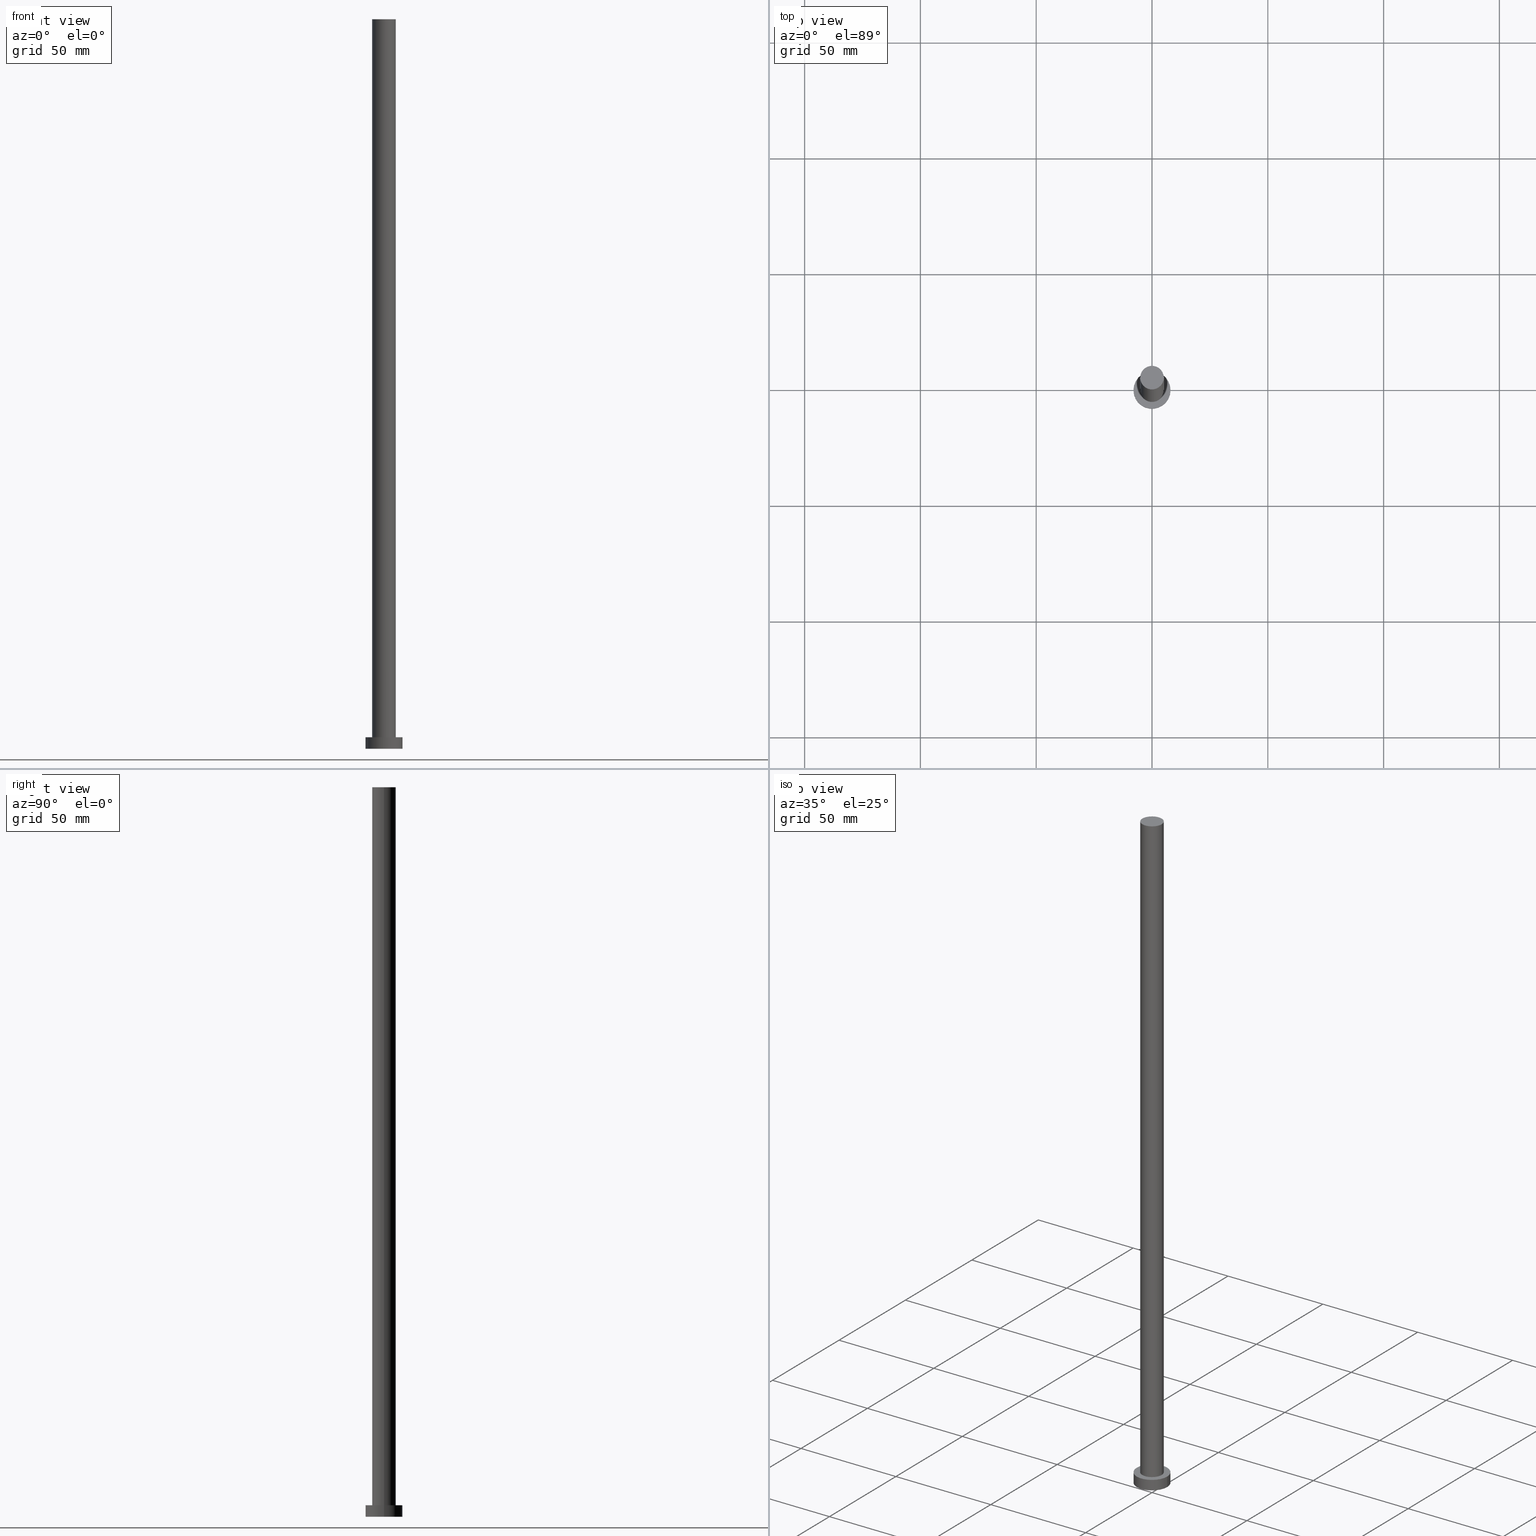
[diagram: canonical four-view strip — front | top / right | iso, engineering-drawing reading convention]
A machine part, canonical four-view strip (front | top / right | iso — engineering-drawing reading convention). The complete STEP part file that produces these views, byte-faithful:
ISO-10303-21;
HEADER;
FILE_DESCRIPTION (( 'STEP AP203' ),
    '1' );
FILE_NAME ('8510.STEP',
    '2023-02-13T13:15:13',
    ( '' ),
    ( '' ),
    'SwSTEP 2.0',
    'SolidWorks 2019',
    '' );
FILE_SCHEMA (( 'CONFIG_CONTROL_DESIGN' ));
ENDSEC;

DATA;
#1 = VERTEX_POINT ( 'NONE', #121 ) ;
#2 = CYLINDRICAL_SURFACE ( 'NONE', #21, 8.000000000000000000 ) ;
#3 = LINE ( 'NONE', #246, #58 ) ;
#4 = CARTESIAN_POINT ( 'NONE',  ( 0.000000000000000000, 0.000000000000000000, 5.000000000000000000 ) ) ;
#5 = DIRECTION ( 'NONE',  ( 1.000000000000000000, 0.000000000000000000, 0.000000000000000000 ) ) ;
#6 = ORIENTED_EDGE ( 'NONE', *, *, #140, .F. ) ;
#7 = LOCAL_TIME ( 14, 15, 13.00000000000000000, #54 ) ;
#8 = CC_DESIGN_PERSON_AND_ORGANIZATION_ASSIGNMENT ( #56, #240, ( #98 ) ) ;
#9 = DIRECTION ( 'NONE',  ( -1.000000000000000000, 0.000000000000000000, 0.000000000000000000 ) ) ;
#10 = DIRECTION ( 'NONE',  ( 1.000000000000000000, 0.000000000000000000, -0.000000000000000000 ) ) ;
#11 = FACE_BOUND ( 'NONE', #75, .T. ) ;
#12 = DIRECTION ( 'NONE',  ( 0.000000000000000000, 0.000000000000000000, 1.000000000000000000 ) ) ;
#13 = APPROVAL_ROLE ( '' ) ;
#14 = CC_DESIGN_APPROVAL ( #238, ( #149 ) ) ;
#15 = DATE_AND_TIME ( #175, #173 ) ;
#16 = PERSON_AND_ORGANIZATION ( #171, #81 ) ;
#17 = VERTEX_POINT ( 'NONE', #64 ) ;
#18 = CC_DESIGN_PERSON_AND_ORGANIZATION_ASSIGNMENT ( #169, #248, ( #40 ) ) ;
#19 = DIRECTION ( 'NONE',  ( 1.000000000000000000, 0.000000000000000000, 0.000000000000000000 ) ) ;
#20 = ORIENTED_EDGE ( 'NONE', *, *, #96, .F. ) ;
#21 = AXIS2_PLACEMENT_3D ( 'NONE', #67, #219, #41 ) ;
#22 = DIRECTION ( 'NONE',  ( 0.000000000000000000, 0.000000000000000000, 1.000000000000000000 ) ) ;
#23 = CARTESIAN_POINT ( 'NONE',  ( 0.000000000000000000, 0.000000000000000000, 5.000000000000000000 ) ) ;
#24 = ORIENTED_EDGE ( 'NONE', *, *, #30, .T. ) ;
#25 = APPLICATION_PROTOCOL_DEFINITION ( 'international standard', 'config_control_design', 1994, #170 ) ;
#26 = CARTESIAN_POINT ( 'NONE',  ( -8.000000000000000000, 0.000000000000000000, 5.000000000000000000 ) ) ;
#27 = DIRECTION ( 'NONE',  ( 1.000000000000000000, 0.000000000000000000, 0.000000000000000000 ) ) ;
#28 = APPROVAL ( #132, 'NEUR�EN�' ) ;
#29 = FACE_OUTER_BOUND ( 'NONE', #36, .T. ) ;
#30 = EDGE_CURVE ( 'NONE', #135, #78, #3, .T. ) ;
#31 = CALENDAR_DATE ( 2023, 13, 2 ) ;
#32 = VERTEX_POINT ( 'NONE', #102 ) ;
#33 = AXIS2_PLACEMENT_3D ( 'NONE', #23, #143, #5 ) ;
#34 = EDGE_CURVE ( 'NONE', #1, #136, #184, .T. ) ;
#35 = DATE_TIME_ROLE ( 'creation_date' ) ;
#36 = EDGE_LOOP ( 'NONE', ( #237, #251 ) ) ;
#37 = ORIENTED_EDGE ( 'NONE', *, *, #140, .T. ) ;
#38 = CIRCLE ( 'NONE', #33, 8.000000000000000000 ) ;
#39 = CARTESIAN_POINT ( 'NONE',  ( -8.000000000000000000, 0.000000000000000000, 5.000000000000000000 ) ) ;
#40 = PRODUCT_DEFINITION ( 'NEZN�M�', '', #98, #44 ) ;
#41 = DIRECTION ( 'NONE',  ( -1.000000000000000000, 0.000000000000000000, 0.000000000000000000 ) ) ;
#42 = CIRCLE ( 'NONE', #61, 5.099999999999999645 ) ;
#43 = DIRECTION ( 'NONE',  ( 0.000000000000000000, 0.000000000000000000, 1.000000000000000000 ) ) ;
#44 = DESIGN_CONTEXT ( 'detailed design', #183, 'design' ) ;
#45 = DIRECTION ( 'NONE',  ( -1.000000000000000000, 0.000000000000000000, 0.000000000000000000 ) ) ;
#46 = EDGE_CURVE ( 'NONE', #17, #115, #160, .T. ) ;
#47 = LINE ( 'NONE', #39, #229 ) ;
#48 = DIRECTION ( 'NONE',  ( 0.000000000000000000, 0.000000000000000000, 1.000000000000000000 ) ) ;
#49 = AXIS2_PLACEMENT_3D ( 'NONE', #172, #148, #71 ) ;
#50 = PERSON_AND_ORGANIZATION ( #171, #81 ) ;
#51 = APPROVAL_STATUS ( 'not_yet_approved' ) ;
#52 = AXIS2_PLACEMENT_3D ( 'NONE', #190, #48, #203 ) ;
#53 = APPROVAL_DATE_TIME ( #233, #205 ) ;
#54 = COORDINATED_UNIVERSAL_TIME_OFFSET ( 1, 0, .AHEAD. ) ;
#55 = ORIENTED_EDGE ( 'NONE', *, *, #255, .T. ) ;
#56 = PERSON_AND_ORGANIZATION ( #171, #81 ) ;
#57 = ORIENTED_EDGE ( 'NONE', *, *, #131, .F. ) ;
#58 = VECTOR ( 'NONE', #105, 1000.000000000000000 ) ;
#59 = CC_DESIGN_PERSON_AND_ORGANIZATION_ASSIGNMENT ( #236, #154, ( #149 ) ) ;
#60 = EDGE_LOOP ( 'NONE', ( #156, #24, #153, #134 ) ) ;
#61 = AXIS2_PLACEMENT_3D ( 'NONE', #249, #69, #108 ) ;
#62 = CARTESIAN_POINT ( 'NONE',  ( 5.099999999999999645, 6.245698675651500839E-16, 315.0000000000000000 ) ) ;
#63 = CIRCLE ( 'NONE', #204, 5.099999999999999645 ) ;
#64 = CARTESIAN_POINT ( 'NONE',  ( 8.000000000000000000, 9.797174393178825657E-16, 0.000000000000000000 ) ) ;
#65 = DIRECTION ( 'NONE',  ( -0.000000000000000000, -0.000000000000000000, -1.000000000000000000 ) ) ;
#66 =( GEOMETRIC_REPRESENTATION_CONTEXT ( 3 ) GLOBAL_UNCERTAINTY_ASSIGNED_CONTEXT ( ( #220 ) ) GLOBAL_UNIT_ASSIGNED_CONTEXT ( ( #93, #127, #225 ) ) REPRESENTATION_CONTEXT ( 'NONE', 'WORKASPACE' ) );
#67 = CARTESIAN_POINT ( 'NONE',  ( 0.000000000000000000, 0.000000000000000000, 5.000000000000000000 ) ) ;
#68 = DIRECTION ( 'NONE',  ( 1.000000000000000000, 0.000000000000000000, 0.000000000000000000 ) ) ;
#69 = DIRECTION ( 'NONE',  ( 0.000000000000000000, 0.000000000000000000, 1.000000000000000000 ) ) ;
#70 = APPLICATION_PROTOCOL_DEFINITION ( 'international standard', 'config_control_design', 1994, #183 ) ;
#71 = DIRECTION ( 'NONE',  ( 1.000000000000000000, 0.000000000000000000, 0.000000000000000000 ) ) ;
#72 = CIRCLE ( 'NONE', #111, 5.099999999999999645 ) ;
#73 = EDGE_LOOP ( 'NONE', ( #218, #212 ) ) ;
#74 = DATE_AND_TIME ( #210, #122 ) ;
#75 = EDGE_LOOP ( 'NONE', ( #6, #112 ) ) ;
#76 = ADVANCED_BREP_SHAPE_REPRESENTATION ( '8510', ( #217, #52 ), #66 ) ;
#77 = COORDINATED_UNIVERSAL_TIME_OFFSET ( 1, 0, .AHEAD. ) ;
#78 = VERTEX_POINT ( 'NONE', #244 ) ;
#79 = ADVANCED_FACE ( 'NONE', ( #85 ), #2, .T. ) ;
#80 = CARTESIAN_POINT ( 'NONE',  ( 0.000000000000000000, 0.000000000000000000, 315.0000000000000000 ) ) ;
#81 = ORGANIZATION ( 'NEUR�EN�', 'NEUR�EN�', '' ) ;
#82 = FACE_OUTER_BOUND ( 'NONE', #152, .T. ) ;
#83 = AXIS2_PLACEMENT_3D ( 'NONE', #198, #245, #45 ) ;
#84 = CARTESIAN_POINT ( 'NONE',  ( 0.000000000000000000, 0.000000000000000000, 0.000000000000000000 ) ) ;
#85 = FACE_OUTER_BOUND ( 'NONE', #201, .T. ) ;
#86 = AXIS2_PLACEMENT_3D ( 'NONE', #209, #88, #9 ) ;
#87 = CARTESIAN_POINT ( 'NONE',  ( -5.099999999999999645, 0.000000000000000000, 315.0000000000000000 ) ) ;
#88 = DIRECTION ( 'NONE',  ( -0.000000000000000000, -0.000000000000000000, -1.000000000000000000 ) ) ;
#89 = EDGE_CURVE ( 'NONE', #135, #1, #234, .T. ) ;
#90 = APPROVAL_PERSON_ORGANIZATION ( #50, #205, #125 ) ;
#91 = FACE_OUTER_BOUND ( 'NONE', #165, .T. ) ;
#92 = ADVANCED_FACE ( 'NONE', ( #139 ), #199, .T. ) ;
#93 =( LENGTH_UNIT ( ) NAMED_UNIT ( * ) SI_UNIT ( .MILLI., .METRE. ) );
#94 = SHAPE_DEFINITION_REPRESENTATION ( #226, #76 ) ;
#95 = CIRCLE ( 'NONE', #49, 8.000000000000000000 ) ;
#96 = EDGE_CURVE ( 'NONE', #32, #214, #38, .T. ) ;
#97 = COORDINATED_UNIVERSAL_TIME_OFFSET ( 1, 0, .AHEAD. ) ;
#98 = PRODUCT_DEFINITION_FORMATION_WITH_SPECIFIED_SOURCE ( 'LIBOVOLN�', '', #119, .NOT_KNOWN. ) ;
#99 = ORIENTED_EDGE ( 'NONE', *, *, #155, .F. ) ;
#100 = DIRECTION ( 'NONE',  ( -0.000000000000000000, -0.000000000000000000, -1.000000000000000000 ) ) ;
#101 = CYLINDRICAL_SURFACE ( 'NONE', #83, 5.099999999999999645 ) ;
#102 = CARTESIAN_POINT ( 'NONE',  ( 8.000000000000000000, 9.797174393178825657E-16, 5.000000000000000000 ) ) ;
#103 = FACE_OUTER_BOUND ( 'NONE', #60, .T. ) ;
#104 = EDGE_CURVE ( 'NONE', #32, #17, #221, .T. ) ;
#105 = DIRECTION ( 'NONE',  ( -0.000000000000000000, -0.000000000000000000, -1.000000000000000000 ) ) ;
#106 = CALENDAR_DATE ( 2023, 13, 2 ) ;
#107 = DIRECTION ( 'NONE',  ( -0.000000000000000000, -0.000000000000000000, -1.000000000000000000 ) ) ;
#108 = DIRECTION ( 'NONE',  ( 1.000000000000000000, 0.000000000000000000, 0.000000000000000000 ) ) ;
#109 = SECURITY_CLASSIFICATION_LEVEL ( 'unclassified' ) ;
#110 = AXIS2_PLACEMENT_3D ( 'NONE', #206, #191, #27 ) ;
#111 = AXIS2_PLACEMENT_3D ( 'NONE', #142, #43, #19 ) ;
#112 = ORIENTED_EDGE ( 'NONE', *, *, #185, .F. ) ;
#113 = CC_DESIGN_APPROVAL ( #205, ( #40 ) ) ;
#114 = ORIENTED_EDGE ( 'NONE', *, *, #104, .T. ) ;
#115 = VERTEX_POINT ( 'NONE', #224 ) ;
#116 = DIRECTION ( 'NONE',  ( 0.000000000000000000, 0.000000000000000000, 1.000000000000000000 ) ) ;
#117 = ADVANCED_FACE ( 'NONE', ( #103 ), #101, .T. ) ;
#118 = ORIENTED_EDGE ( 'NONE', *, *, #30, .F. ) ;
#119 = PRODUCT ( '8510', '8510', '', ( #231 ) ) ;
#120 = CARTESIAN_POINT ( 'NONE',  ( -5.099999999999999645, 0.000000000000000000, 5.000000000000000000 ) ) ;
#121 = CARTESIAN_POINT ( 'NONE',  ( -5.099999999999999645, 0.000000000000000000, 315.0000000000000000 ) ) ;
#122 = LOCAL_TIME ( 14, 15, 13.00000000000000000, #77 ) ;
#123 = PLANE ( 'NONE',  #215 ) ;
#124 = COORDINATED_UNIVERSAL_TIME_OFFSET ( 1, 0, .AHEAD. ) ;
#125 = APPROVAL_ROLE ( '' ) ;
#126 = AXIS2_PLACEMENT_3D ( 'NONE', #228, #12, #10 ) ;
#127 =( NAMED_UNIT ( * ) PLANE_ANGLE_UNIT ( ) SI_UNIT ( $, .RADIAN. ) );
#128 = CC_DESIGN_DATE_AND_TIME_ASSIGNMENT ( #15, #35, ( #40 ) ) ;
#129 = VECTOR ( 'NONE', #247, 1000.000000000000000 ) ;
#130 = FACE_OUTER_BOUND ( 'NONE', #164, .T. ) ;
#131 = EDGE_CURVE ( 'NONE', #1, #135, #72, .T. ) ;
#132 = APPROVAL_STATUS ( 'not_yet_approved' ) ;
#133 = DATE_AND_TIME ( #31, #252 ) ;
#134 = ORIENTED_EDGE ( 'NONE', *, *, #34, .F. ) ;
#135 = VERTEX_POINT ( 'NONE', #62 ) ;
#136 = VERTEX_POINT ( 'NONE', #120 ) ;
#137 = ORIENTED_EDGE ( 'NONE', *, *, #211, .T. ) ;
#138 = AXIS2_PLACEMENT_3D ( 'NONE', #4, #107, #230 ) ;
#139 = FACE_OUTER_BOUND ( 'NONE', #73, .T. ) ;
#140 = EDGE_CURVE ( 'NONE', #136, #78, #63, .T. ) ;
#141 = DIRECTION ( 'NONE',  ( 1.000000000000000000, 0.000000000000000000, 0.000000000000000000 ) ) ;
#142 = CARTESIAN_POINT ( 'NONE',  ( 0.000000000000000000, 0.000000000000000000, 315.0000000000000000 ) ) ;
#143 = DIRECTION ( 'NONE',  ( 0.000000000000000000, 0.000000000000000000, 1.000000000000000000 ) ) ;
#144 = DIRECTION ( 'NONE',  ( 1.000000000000000000, 0.000000000000000000, -0.000000000000000000 ) ) ;
#145 = CYLINDRICAL_SURFACE ( 'NONE', #86, 5.099999999999999645 ) ;
#146 = APPROVAL_PERSON_ORGANIZATION ( #174, #238, #13 ) ;
#147 = PERSON_AND_ORGANIZATION ( #171, #81 ) ;
#148 = DIRECTION ( 'NONE',  ( 0.000000000000000000, 0.000000000000000000, 1.000000000000000000 ) ) ;
#149 = SECURITY_CLASSIFICATION ( '', '', #109 ) ;
#150 = AXIS2_PLACEMENT_3D ( 'NONE', #181, #116, #68 ) ;
#151 = COORDINATED_UNIVERSAL_TIME_OFFSET ( 1, 0, .AHEAD. ) ;
#152 = EDGE_LOOP ( 'NONE', ( #20, #114, #196, #99 ) ) ;
#153 = ORIENTED_EDGE ( 'NONE', *, *, #185, .T. ) ;
#154 = PERSON_AND_ORGANIZATION_ROLE ( 'classification_officer' ) ;
#155 = EDGE_CURVE ( 'NONE', #214, #115, #47, .T. ) ;
#156 = ORIENTED_EDGE ( 'NONE', *, *, #89, .F. ) ;
#157 = PERSON_AND_ORGANIZATION ( #171, #81 ) ;
#158 = ORIENTED_EDGE ( 'NONE', *, *, #34, .T. ) ;
#159 = CC_DESIGN_APPROVAL ( #28, ( #98 ) ) ;
#160 = CIRCLE ( 'NONE', #162, 8.000000000000000000 ) ;
#161 = CYLINDRICAL_SURFACE ( 'NONE', #138, 8.000000000000000000 ) ;
#162 = AXIS2_PLACEMENT_3D ( 'NONE', #84, #186, #141 ) ;
#163 = DIRECTION ( 'NONE',  ( 0.000000000000000000, 0.000000000000000000, 1.000000000000000000 ) ) ;
#164 = EDGE_LOOP ( 'NONE', ( #55, #243 ) ) ;
#165 = EDGE_LOOP ( 'NONE', ( #118, #57, #158, #37 ) ) ;
#166 = ADVANCED_FACE ( 'NONE', ( #82 ), #161, .T. ) ;
#167 = PLANE ( 'NONE',  #126 ) ;
#168 = CARTESIAN_POINT ( 'NONE',  ( 0.000000000000000000, 0.000000000000000000, 0.000000000000000000 ) ) ;
#169 = PERSON_AND_ORGANIZATION ( #171, #81 ) ;
#170 = APPLICATION_CONTEXT ( 'configuration controlled 3d designs of mechanical parts and assemblies' ) ;
#171 = PERSON ( 'NEUR�EN�', 'NEUR�EN�', 'NEUR�EN�', ('NEUR�EN�'), ('NEUR�EN�'), ('NEUR�EN�') ) ;
#172 = CARTESIAN_POINT ( 'NONE',  ( 0.000000000000000000, 0.000000000000000000, 5.000000000000000000 ) ) ;
#173 = LOCAL_TIME ( 14, 15, 13.00000000000000000, #151 ) ;
#174 = PERSON_AND_ORGANIZATION ( #171, #81 ) ;
#175 = CALENDAR_DATE ( 2023, 13, 2 ) ;
#176 = ORIENTED_EDGE ( 'NONE', *, *, #155, .T. ) ;
#177 = ADVANCED_FACE ( 'NONE', ( #11, #130 ), #167, .T. ) ;
#178 = APPROVAL_DATE_TIME ( #74, #28 ) ;
#179 = ORIENTED_EDGE ( 'NONE', *, *, #255, .F. ) ;
#180 = ADVANCED_FACE ( 'NONE', ( #91 ), #145, .T. ) ;
#181 = CARTESIAN_POINT ( 'NONE',  ( 0.000000000000000000, 0.000000000000000000, 315.0000000000000000 ) ) ;
#182 = DIRECTION ( 'NONE',  ( 1.000000000000000000, 0.000000000000000000, 0.000000000000000000 ) ) ;
#183 = APPLICATION_CONTEXT ( 'configuration controlled 3d designs of mechanical parts and assemblies' ) ;
#184 = LINE ( 'NONE', #87, #129 ) ;
#185 = EDGE_CURVE ( 'NONE', #78, #136, #42, .T. ) ;
#186 = DIRECTION ( 'NONE',  ( 0.000000000000000000, 0.000000000000000000, 1.000000000000000000 ) ) ;
#187 = LOCAL_TIME ( 14, 15, 13.00000000000000000, #124 ) ;
#188 = AXIS2_PLACEMENT_3D ( 'NONE', #80, #163, #144 ) ;
#189 = DIRECTION ( 'NONE',  ( 0.000000000000000000, 0.000000000000000000, 1.000000000000000000 ) ) ;
#190 = CARTESIAN_POINT ( 'NONE',  ( 0.000000000000000000, 0.000000000000000000, 0.000000000000000000 ) ) ;
#191 = DIRECTION ( 'NONE',  ( 0.000000000000000000, 0.000000000000000000, 1.000000000000000000 ) ) ;
#192 = CALENDAR_DATE ( 2023, 13, 2 ) ;
#193 = CC_DESIGN_PERSON_AND_ORGANIZATION_ASSIGNMENT ( #157, #235, ( #98 ) ) ;
#194 = APPROVAL_ROLE ( '' ) ;
#195 = PRODUCT_RELATED_PRODUCT_CATEGORY ( 'detail', '', ( #119 ) ) ;
#196 = ORIENTED_EDGE ( 'NONE', *, *, #46, .T. ) ;
#197 = CC_DESIGN_DATE_AND_TIME_ASSIGNMENT ( #241, #239, ( #149 ) ) ;
#198 = CARTESIAN_POINT ( 'NONE',  ( 0.000000000000000000, 0.000000000000000000, 315.0000000000000000 ) ) ;
#199 = PLANE ( 'NONE',  #188 ) ;
#200 = CARTESIAN_POINT ( 'NONE',  ( 0.000000000000000000, 0.000000000000000000, 5.000000000000000000 ) ) ;
#201 = EDGE_LOOP ( 'NONE', ( #216, #179, #176, #137 ) ) ;
#202 = CC_DESIGN_PERSON_AND_ORGANIZATION_ASSIGNMENT ( #147, #207, ( #119 ) ) ;
#203 = DIRECTION ( 'NONE',  ( 1.000000000000000000, 0.000000000000000000, 0.000000000000000000 ) ) ;
#204 = AXIS2_PLACEMENT_3D ( 'NONE', #200, #22, #182 ) ;
#205 = APPROVAL ( #51, 'NEUR�EN�' ) ;
#206 = CARTESIAN_POINT ( 'NONE',  ( 0.000000000000000000, 0.000000000000000000, 0.000000000000000000 ) ) ;
#207 = PERSON_AND_ORGANIZATION_ROLE ( 'design_owner' ) ;
#208 = CLOSED_SHELL ( 'NONE', ( #117, #166, #79, #177, #232, #180, #92 ) ) ;
#209 = CARTESIAN_POINT ( 'NONE',  ( 0.000000000000000000, 0.000000000000000000, 315.0000000000000000 ) ) ;
#210 = CALENDAR_DATE ( 2023, 13, 2 ) ;
#211 = EDGE_CURVE ( 'NONE', #115, #17, #222, .T. ) ;
#212 = ORIENTED_EDGE ( 'NONE', *, *, #89, .T. ) ;
#213 = VECTOR ( 'NONE', #65, 1000.000000000000000 ) ;
#214 = VERTEX_POINT ( 'NONE', #26 ) ;
#215 = AXIS2_PLACEMENT_3D ( 'NONE', #168, #189, #250 ) ;
#216 = ORIENTED_EDGE ( 'NONE', *, *, #104, .F. ) ;
#217 = MANIFOLD_SOLID_BREP ( 'P�idat vysunut�m3', #208 ) ;
#218 = ORIENTED_EDGE ( 'NONE', *, *, #131, .T. ) ;
#219 = DIRECTION ( 'NONE',  ( -0.000000000000000000, -0.000000000000000000, -1.000000000000000000 ) ) ;
#220 = UNCERTAINTY_MEASURE_WITH_UNIT (LENGTH_MEASURE( 1.000000000000000082E-05 ), #93, 'distance_accuracy_value', 'NONE');
#221 = LINE ( 'NONE', #223, #213 ) ;
#222 = CIRCLE ( 'NONE', #110, 8.000000000000000000 ) ;
#223 = CARTESIAN_POINT ( 'NONE',  ( 8.000000000000000000, 9.797174393178825657E-16, 5.000000000000000000 ) ) ;
#224 = CARTESIAN_POINT ( 'NONE',  ( -8.000000000000000000, 0.000000000000000000, 0.000000000000000000 ) ) ;
#225 =( NAMED_UNIT ( * ) SI_UNIT ( $, .STERADIAN. ) SOLID_ANGLE_UNIT ( ) );
#226 = PRODUCT_DEFINITION_SHAPE ( 'NONE', 'NONE',  #40 ) ;
#227 = CC_DESIGN_SECURITY_CLASSIFICATION ( #149, ( #98 ) ) ;
#228 = CARTESIAN_POINT ( 'NONE',  ( 0.000000000000000000, 0.000000000000000000, 5.000000000000000000 ) ) ;
#229 = VECTOR ( 'NONE', #100, 1000.000000000000000 ) ;
#230 = DIRECTION ( 'NONE',  ( -1.000000000000000000, 0.000000000000000000, 0.000000000000000000 ) ) ;
#231 = MECHANICAL_CONTEXT ( 'NONE', #170, 'mechanical' ) ;
#232 = ADVANCED_FACE ( 'NONE', ( #29 ), #123, .F. ) ;
#233 = DATE_AND_TIME ( #106, #187 ) ;
#234 = CIRCLE ( 'NONE', #150, 5.099999999999999645 ) ;
#235 = PERSON_AND_ORGANIZATION_ROLE ( 'creator' ) ;
#236 = PERSON_AND_ORGANIZATION ( #171, #81 ) ;
#237 = ORIENTED_EDGE ( 'NONE', *, *, #211, .F. ) ;
#238 = APPROVAL ( #253, 'NEUR�EN�' ) ;
#239 = DATE_TIME_ROLE ( 'classification_date' ) ;
#240 = PERSON_AND_ORGANIZATION_ROLE ( 'design_supplier' ) ;
#241 = DATE_AND_TIME ( #192, #7 ) ;
#242 = APPROVAL_PERSON_ORGANIZATION ( #16, #28, #194 ) ;
#243 = ORIENTED_EDGE ( 'NONE', *, *, #96, .T. ) ;
#244 = CARTESIAN_POINT ( 'NONE',  ( 5.099999999999999645, 6.245698675651500839E-16, 5.000000000000000000 ) ) ;
#245 = DIRECTION ( 'NONE',  ( -0.000000000000000000, -0.000000000000000000, -1.000000000000000000 ) ) ;
#246 = CARTESIAN_POINT ( 'NONE',  ( 5.099999999999999645, 6.245698675651500839E-16, 315.0000000000000000 ) ) ;
#247 = DIRECTION ( 'NONE',  ( -0.000000000000000000, -0.000000000000000000, -1.000000000000000000 ) ) ;
#248 = PERSON_AND_ORGANIZATION_ROLE ( 'creator' ) ;
#249 = CARTESIAN_POINT ( 'NONE',  ( 0.000000000000000000, 0.000000000000000000, 5.000000000000000000 ) ) ;
#250 = DIRECTION ( 'NONE',  ( 1.000000000000000000, 0.000000000000000000, -0.000000000000000000 ) ) ;
#251 = ORIENTED_EDGE ( 'NONE', *, *, #46, .F. ) ;
#252 = LOCAL_TIME ( 14, 15, 13.00000000000000000, #97 ) ;
#253 = APPROVAL_STATUS ( 'not_yet_approved' ) ;
#254 = APPROVAL_DATE_TIME ( #133, #238 ) ;
#255 = EDGE_CURVE ( 'NONE', #214, #32, #95, .T. ) ;
ENDSEC;
END-ISO-10303-21;
